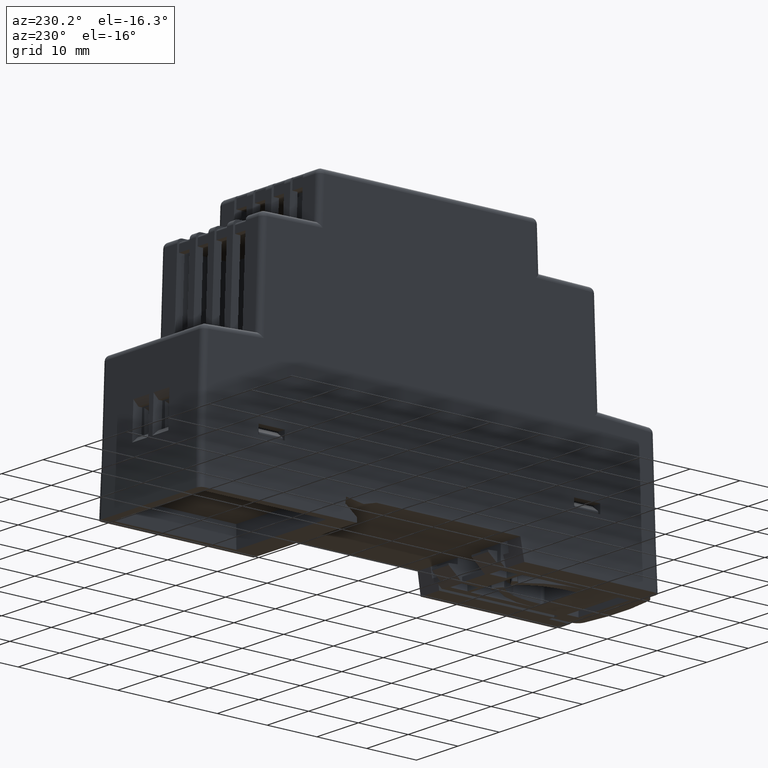
[diagram: clean part render]
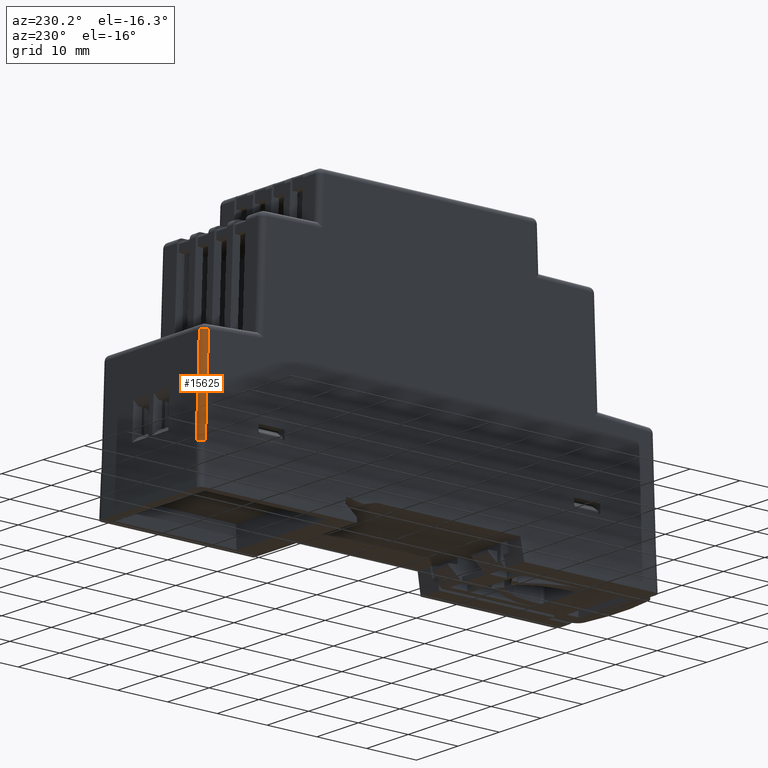
[diagram: same view with one face highlighted and labeled with its STEP entity id]
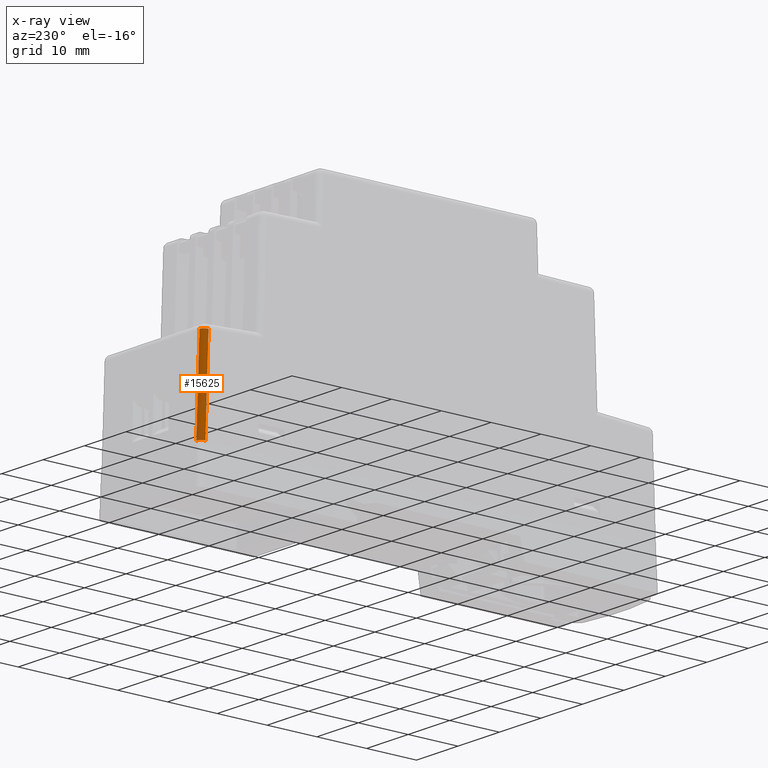
[diagram: x-ray of the same camera — body ghosted, the highlighted face saturated]
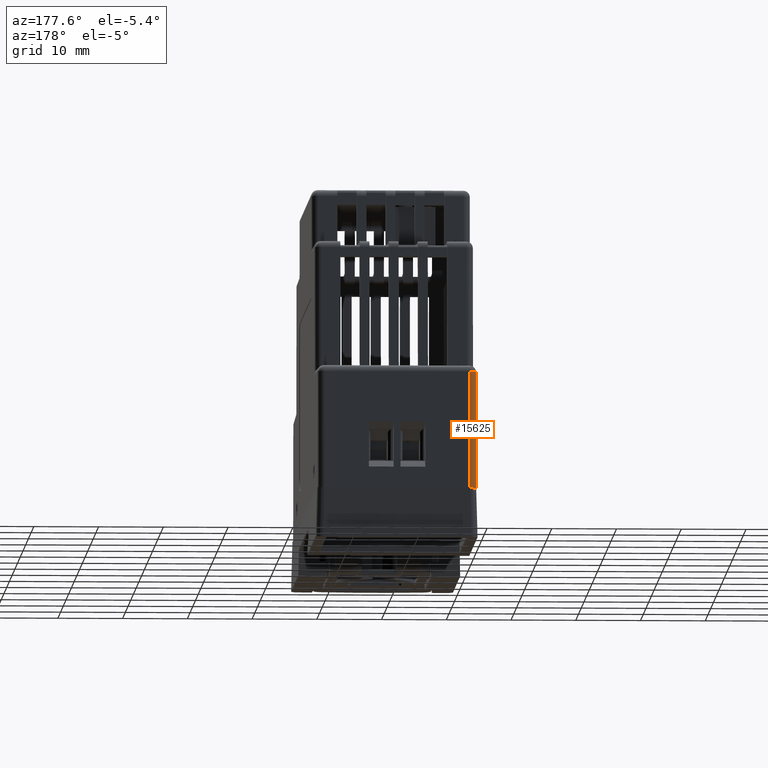
[diagram: same view with one face highlighted and labeled with its STEP entity id]
A machine part, auxiliary view. The second image highlights one B-rep face of the part: STEP entity #15625.
The next image is the same camera in x-ray: the body ghosted, the highlighted face saturated — about 0% of this face is hidden behind the body in this view.
A second angle (auxiliary view) of the same face is appended — the face is thin or edge-on in the first view.
In plain terms, the highlighted cylindrical surface (edge-blend (fillet) strip) has radius 1 mm, axis along (-0, -0.0349, 0.9994).
Its self-contained STEP definition (entity closure, byte-faithful):
#15379=CARTESIAN_POINT('',(-12.250000000000000,44.368668651550003,18.084137762680001));
#15380=VERTEX_POINT('',#15379);
#15387=CARTESIAN_POINT('',(-12.250000000000000,45.001132675030000,0.0));
#15388=VERTEX_POINT('',#15387);
#15389=CARTESIAN_POINT('',(-12.250000000000000,45.000181615868009,-0.000033211707160));
#15390=DIRECTION('',(0.0,-0.034899485568091,0.999390827407918));
#15391=VECTOR('',#15390,18.095194070663318);
#15392=LINE('',#15389,#15391);
#15393=EDGE_CURVE('',#15388,#15380,#15392,.T.);
#15593=CARTESIAN_POINT('',(-11.250000000000000,45.005991031470003,-0.166393161298100));
#15594=DIRECTION('',(0.0,-0.034899485568091,0.999390827407918));
#15595=DIRECTION('',(0.0,0.999390827407918,0.034899485568091));
#15596=AXIS2_PLACEMENT_3D('',#15593,#15594,#15595);
#15597=CYLINDRICAL_SURFACE('',#15596,1.0);
#15598=CARTESIAN_POINT('',(-11.250000000000000,46.000790000004905,0.0));
#15599=VERTEX_POINT('',#15598);
#15600=CARTESIAN_POINT('',(-11.250000000000000,45.368059478960291,18.119037248250002));
#15601=VERTEX_POINT('',#15600);
#15602=CARTESIAN_POINT('',(-11.250000000000000,46.000790000004898,-2.775558E-016));
#15603=DIRECTION('',(0.0,-0.034899485568090,0.999390827407918));
#15604=VECTOR('',#15603,18.130081597051138);
#15605=LINE('',#15602,#15604);
#15606=EDGE_CURVE('',#15599,#15601,#15605,.T.);
#15607=ORIENTED_EDGE('',*,*,#15606,.F.);
#15608=CARTESIAN_POINT('',(-11.250000000000000,45.000180456095393,0.0));
#15609=DIRECTION('',(0.0,0.0,1.0));
#15610=DIRECTION('',(-1.0,0.0,0.0));
#15611=AXIS2_PLACEMENT_3D('',#15608,#15609,#15610);
#15612=CIRCLE('',#15611,1.000609543909530);
#15613=EDGE_CURVE('',#15599,#15388,#15612,.T.);
#15614=ORIENTED_EDGE('',*,*,#15613,.T.);
#15615=ORIENTED_EDGE('',*,*,#15393,.T.);
#15616=CARTESIAN_POINT('',(-11.250000000000000,44.368668651550003,18.084137762680001));
#15617=DIRECTION('',(0.0,-0.034899485568091,0.999390827407918));
#15618=DIRECTION('',(0.0,0.999390827407918,0.034899485568091));
#15619=AXIS2_PLACEMENT_3D('',#15616,#15617,#15618);
#15620=CIRCLE('',#15619,1.0);
#15621=EDGE_CURVE('',#15601,#15380,#15620,.T.);
#15622=ORIENTED_EDGE('',*,*,#15621,.F.);
#15623=EDGE_LOOP('',(#15607,#15614,#15615,#15622));
#15624=FACE_OUTER_BOUND('',#15623,.T.);
#15625=ADVANCED_FACE('',(#15624),#15597,.T.);